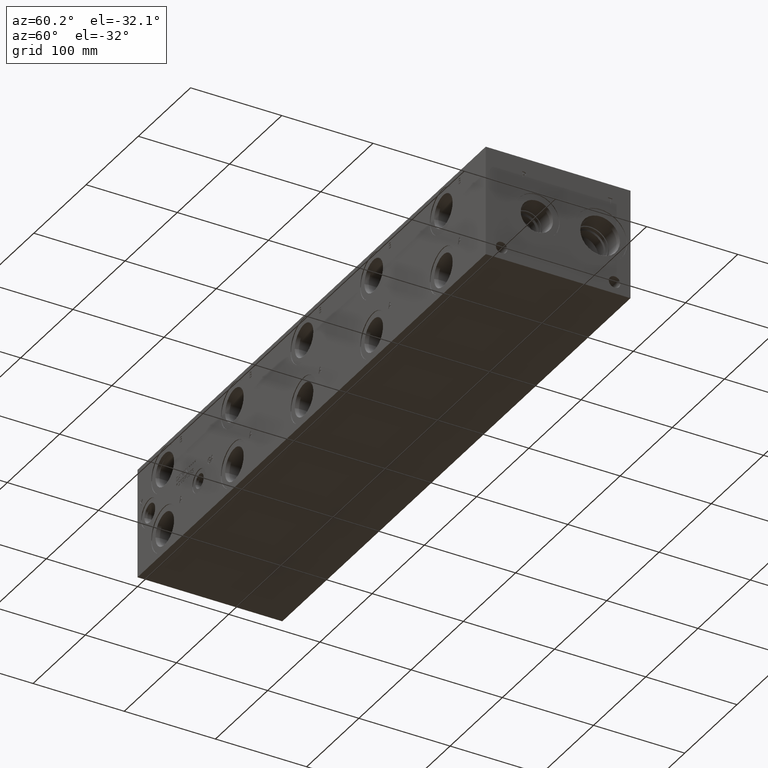
[diagram: clean part render]
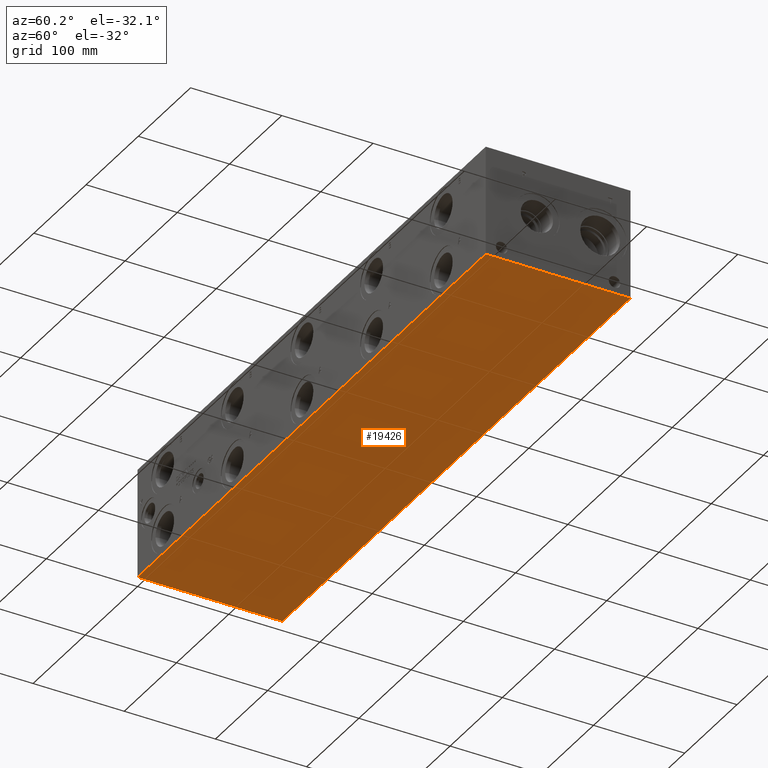
[diagram: same view with one face highlighted and labeled with its STEP entity id]
A machine part, auxiliary view. The second image highlights one B-rep face of the part: STEP entity #19426.
In plain terms, the highlighted planar face has unit normal (0, 0, 1).
Its self-contained STEP definition (entity closure, byte-faithful):
#2929=FACE_OUTER_BOUND('',#4170,.T.);
#4170=EDGE_LOOP('',(#17338,#17339,#17340,#17341));
#4204=LINE('',#25661,#5788);
#5321=LINE('',#31415,#6905);
#5380=LINE('',#31687,#6964);
#5753=LINE('',#33925,#7337);
#5788=VECTOR('',#21023,10.);
#6905=VECTOR('',#22908,10.);
#6964=VECTOR('',#23021,10.);
#7337=VECTOR('',#25580,10.);
#7361=VERTEX_POINT('',#25659);
#7362=VERTEX_POINT('',#25660);
#8399=VERTEX_POINT('',#31414);
#8457=VERTEX_POINT('',#31686);
#9263=EDGE_CURVE('',#7361,#7362,#4204,.T.);
#10806=EDGE_CURVE('',#7362,#8399,#5321,.T.);
#10889=EDGE_CURVE('',#8457,#7361,#5380,.T.);
#11932=EDGE_CURVE('',#8399,#8457,#5753,.T.);
#17338=ORIENTED_EDGE('',*,*,#9263,.F.);
#17339=ORIENTED_EDGE('',*,*,#10889,.F.);
#17340=ORIENTED_EDGE('',*,*,#11932,.F.);
#17341=ORIENTED_EDGE('',*,*,#10806,.F.);
#17814=PLANE('',#20961);
#19426=ADVANCED_FACE('',(#2929),#17814,.F.);
#20961=AXIS2_PLACEMENT_3D('',#33930,#25588,#25589);
#21023=DIRECTION('',(1.,0.,0.));
#22908=DIRECTION('',(0.,1.,0.));
#23021=DIRECTION('',(0.,-1.,0.));
#25580=DIRECTION('',(-1.,0.,0.));
#25588=DIRECTION('center_axis',(0.,0.,1.));
#25589=DIRECTION('ref_axis',(1.,0.,0.));
#25659=CARTESIAN_POINT('',(0.,0.,0.));
#25660=CARTESIAN_POINT('',(666.75,0.,0.));
#25661=CARTESIAN_POINT('',(0.,0.,0.));
#31414=CARTESIAN_POINT('',(666.75,158.75,0.));
#31415=CARTESIAN_POINT('',(666.75,0.,0.));
#31686=CARTESIAN_POINT('',(0.,158.75,0.));
#31687=CARTESIAN_POINT('',(0.,158.75,0.));
#33925=CARTESIAN_POINT('',(666.75,158.75,0.));
#33930=CARTESIAN_POINT('Origin',(333.375,79.375,0.));